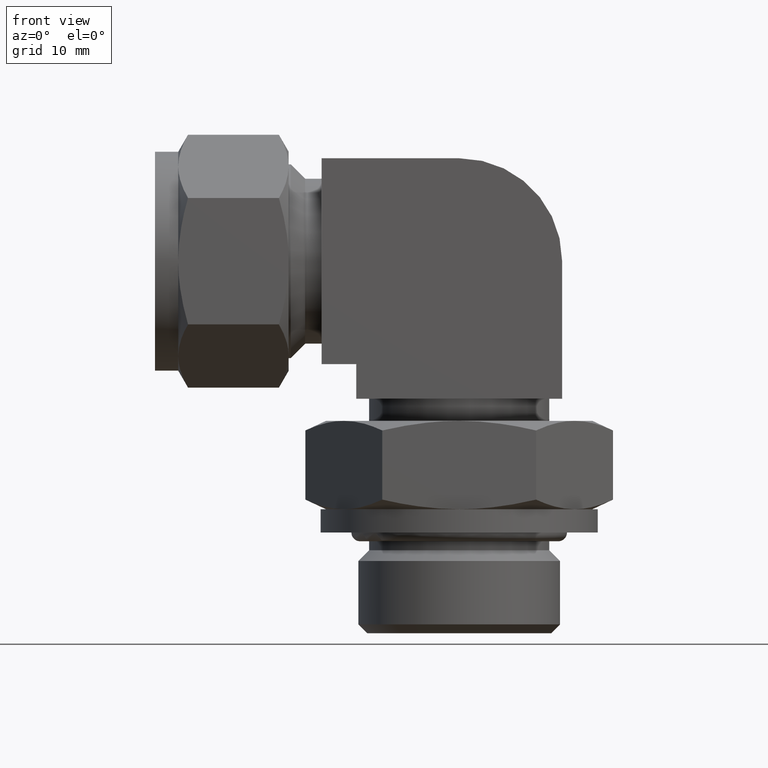
[diagram: clean part render]
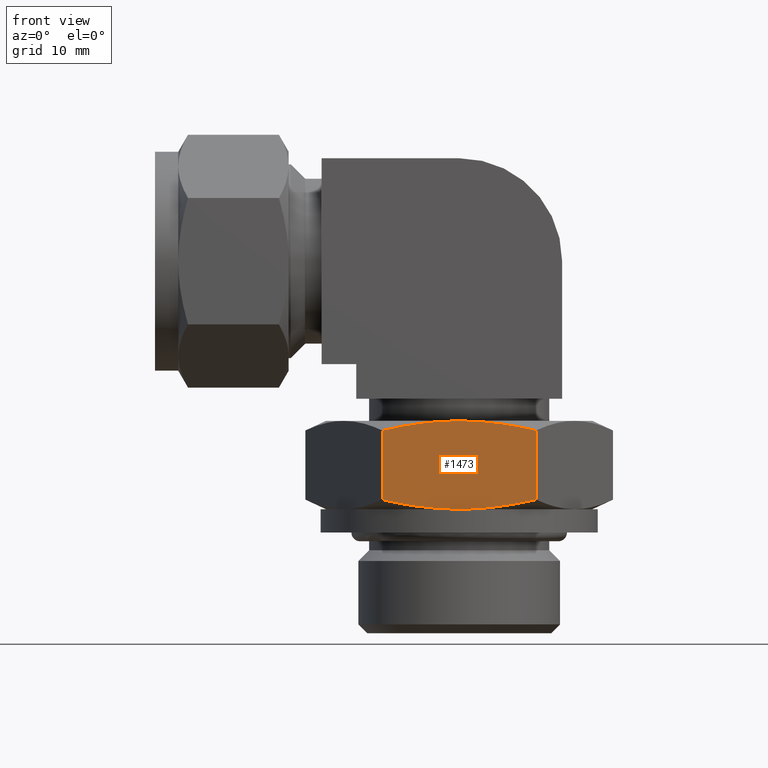
[diagram: same view with one face highlighted and labeled with its STEP entity id]
A machine part, front view. The second image highlights one B-rep face of the part: STEP entity #1473.
In plain terms, the highlighted planar face has unit normal (-0, -1, -0).
Its self-contained STEP definition (entity closure, byte-faithful):
#35 = FACE_OUTER_BOUND ( 'NONE', #1085, .T. ) ;
#63 = CARTESIAN_POINT ( 'NONE',  ( 49.95997907572380115, -17.46249999999999858, -32.51200000000000045 ) ) ;
#93 = VECTOR ( 'NONE', #598, 1000.000000000000000 ) ;
#104 = CARTESIAN_POINT ( 'NONE',  ( 39.87800000000000011, -17.46249999999999858, -20.92960000000000065 ) ) ;
#111 = CARTESIAN_POINT ( 'NONE',  ( 44.55706277282855154, -17.46249999999998082, -32.51200000000002888 ) ) ;
#138 =( BOUNDED_CURVE ( )  B_SPLINE_CURVE ( 2, ( #104, #2417, #474 ),
 .UNSPECIFIED., .F., .F. ) 
 B_SPLINE_CURVE_WITH_KNOTS ( ( 3, 3 ),
 ( 0.4006919385896450247, 0.8013838771792910487 ),
 .UNSPECIFIED. ) 
 CURVE ( )  GEOMETRIC_REPRESENTATION_ITEM ( )  RATIONAL_B_SPLINE_CURVE ( ( 1.000000000000000000, 1.037954849302009874, 1.000000000000000000 ) ) 
 REPRESENTATION_ITEM ( '' )  );
#216 = VECTOR ( 'NONE', #1737, 1000.000000000000000 ) ;
#244 = ORIENTED_EDGE ( 'NONE', *, *, #1740, .T. ) ;
#258 = AXIS2_PLACEMENT_3D ( 'NONE', #820, #1772, #1976 ) ;
#270 = ORIENTED_EDGE ( 'NONE', *, *, #1354, .F. ) ;
#467 = EDGE_CURVE ( 'NONE', #1034, #2265, #641, .T. ) ;
#474 = CARTESIAN_POINT ( 'NONE',  ( 29.79602092427619908, -17.46249999999999858, -22.18931062420530154 ) ) ;
#579 = EDGE_CURVE ( 'NONE', #1604, #1034, #902, .T. ) ;
#583 = CARTESIAN_POINT ( 'NONE',  ( 29.79602092427619908, -17.46249999999999858, -32.51200000000000045 ) ) ;
#598 = DIRECTION ( 'NONE',  ( -2.220446049250309876E-16, 0.000000000000000000, 1.000000000000000000 ) ) ;
#641 =( BOUNDED_CURVE ( )  B_SPLINE_CURVE ( 2, ( #919, #111, #2447 ),
 .UNSPECIFIED., .F., .T. ) 
 B_SPLINE_CURVE_WITH_KNOTS ( ( 3, 3 ),
 ( 0.4006919385896460239, 0.8013838771792920479 ),
 .UNSPECIFIED. ) 
 CURVE ( )  GEOMETRIC_REPRESENTATION_ITEM ( )  RATIONAL_B_SPLINE_CURVE ( ( 1.000000000000000000, 1.037954849302019866, 1.000000000000000000 ) ) 
 REPRESENTATION_ITEM ( '' )  );
#725 =( BOUNDED_CURVE ( )  B_SPLINE_CURVE ( 2, ( #752, #1726, #2433 ),
 .UNSPECIFIED., .F., .T. ) 
 B_SPLINE_CURVE_WITH_KNOTS ( ( 3, 3 ),
 ( 0.000000000000000000, 0.4006919385896449692 ),
 .UNSPECIFIED. ) 
 CURVE ( )  GEOMETRIC_REPRESENTATION_ITEM ( )  RATIONAL_B_SPLINE_CURVE ( ( 1.000000000000000000, 1.037954849302009874, 1.000000000000000000 ) ) 
 REPRESENTATION_ITEM ( '' )  );
#752 = CARTESIAN_POINT ( 'NONE',  ( 49.95997907572380115, -17.46249999999999858, -22.18931062420530154 ) ) ;
#779 = EDGE_CURVE ( 'NONE', #940, #1239, #138, .T. ) ;
#820 = CARTESIAN_POINT ( 'NONE',  ( 49.95997907572380115, -17.46249999999999858, -32.51200000000000045 ) ) ;
#902 =( BOUNDED_CURVE ( )  B_SPLINE_CURVE ( 2, ( #1197, #1373, #2146 ),
 .UNSPECIFIED., .F., .F. ) 
 B_SPLINE_CURVE_WITH_KNOTS ( ( 3, 3 ),
 ( 0.000000000000000000, 0.4006919385896460239 ),
 .UNSPECIFIED. ) 
 CURVE ( )  GEOMETRIC_REPRESENTATION_ITEM ( )  RATIONAL_B_SPLINE_CURVE ( ( 1.000000000000000000, 1.037954849302089810, 1.000000000000000000 ) ) 
 REPRESENTATION_ITEM ( '' )  );
#914 = CARTESIAN_POINT ( 'NONE',  ( 49.95997907572380115, -17.46249999999999858, -22.18931062420530154 ) ) ;
#919 = CARTESIAN_POINT ( 'NONE',  ( 39.87800000000000011, -17.46249999999999858, -32.51200000000000045 ) ) ;
#940 = VERTEX_POINT ( 'NONE', #1978 ) ;
#955 = EDGE_CURVE ( 'NONE', #2265, #2383, #1800, .T. ) ;
#968 = LINE ( 'NONE', #583, #216 ) ;
#1003 = PLANE ( 'NONE',  #258 ) ;
#1034 = VERTEX_POINT ( 'NONE', #1170 ) ;
#1052 = CARTESIAN_POINT ( 'NONE',  ( 29.79602092427619908, -17.46249999999999858, -31.25228937579469601 ) ) ;
#1070 = CARTESIAN_POINT ( 'NONE',  ( 49.95997907572380115, -17.46249999999999858, -31.25228937579469601 ) ) ;
#1085 = EDGE_LOOP ( 'NONE', ( #1422, #2356, #1993, #244, #1276, #270 ) ) ;
#1170 = CARTESIAN_POINT ( 'NONE',  ( 39.87800000000000011, -17.46249999999999858, -32.51200000000000045 ) ) ;
#1197 = CARTESIAN_POINT ( 'NONE',  ( 29.79602092427619908, -17.46249999999999858, -31.25228937579469601 ) ) ;
#1239 = VERTEX_POINT ( 'NONE', #1321 ) ;
#1276 = ORIENTED_EDGE ( 'NONE', *, *, #779, .T. ) ;
#1321 = CARTESIAN_POINT ( 'NONE',  ( 29.79602092427619908, -17.46249999999999858, -22.18931062420530154 ) ) ;
#1354 = EDGE_CURVE ( 'NONE', #1604, #1239, #968, .T. ) ;
#1373 = CARTESIAN_POINT ( 'NONE',  ( 35.19893722717149132, -17.46250000000000924, -32.51200000000000045 ) ) ;
#1422 = ORIENTED_EDGE ( 'NONE', *, *, #579, .T. ) ;
#1473 = ADVANCED_FACE ( 'NONE', ( #35 ), #1003, .T. ) ;
#1604 = VERTEX_POINT ( 'NONE', #1052 ) ;
#1726 = CARTESIAN_POINT ( 'NONE',  ( 44.55706277282849470, -17.46250000000000213, -20.92960000000000775 ) ) ;
#1737 = DIRECTION ( 'NONE',  ( -2.220446049250309876E-16, 0.000000000000000000, 1.000000000000000000 ) ) ;
#1740 = EDGE_CURVE ( 'NONE', #2383, #940, #725, .T. ) ;
#1772 = DIRECTION ( 'NONE',  ( -1.398518317369869950E-16, -1.000000000000000000, -3.105334472608109546E-32 ) ) ;
#1800 = LINE ( 'NONE', #63, #93 ) ;
#1976 = DIRECTION ( 'NONE',  ( -1.000000000000000000, 1.398518317369869950E-16, 0.000000000000000000 ) ) ;
#1978 = CARTESIAN_POINT ( 'NONE',  ( 39.87800000000000011, -17.46249999999999858, -20.92960000000000065 ) ) ;
#1993 = ORIENTED_EDGE ( 'NONE', *, *, #955, .T. ) ;
#2146 = CARTESIAN_POINT ( 'NONE',  ( 39.87800000000000011, -17.46249999999999858, -32.51200000000000045 ) ) ;
#2265 = VERTEX_POINT ( 'NONE', #1070 ) ;
#2356 = ORIENTED_EDGE ( 'NONE', *, *, #467, .T. ) ;
#2383 = VERTEX_POINT ( 'NONE', #914 ) ;
#2417 = CARTESIAN_POINT ( 'NONE',  ( 35.19893722717149842, -17.46250000000000213, -20.92960000000000775 ) ) ;
#2433 = CARTESIAN_POINT ( 'NONE',  ( 39.87800000000000011, -17.46249999999999858, -20.92960000000000065 ) ) ;
#2447 = CARTESIAN_POINT ( 'NONE',  ( 49.95997907572380115, -17.46249999999999858, -31.25228937579469601 ) ) ;